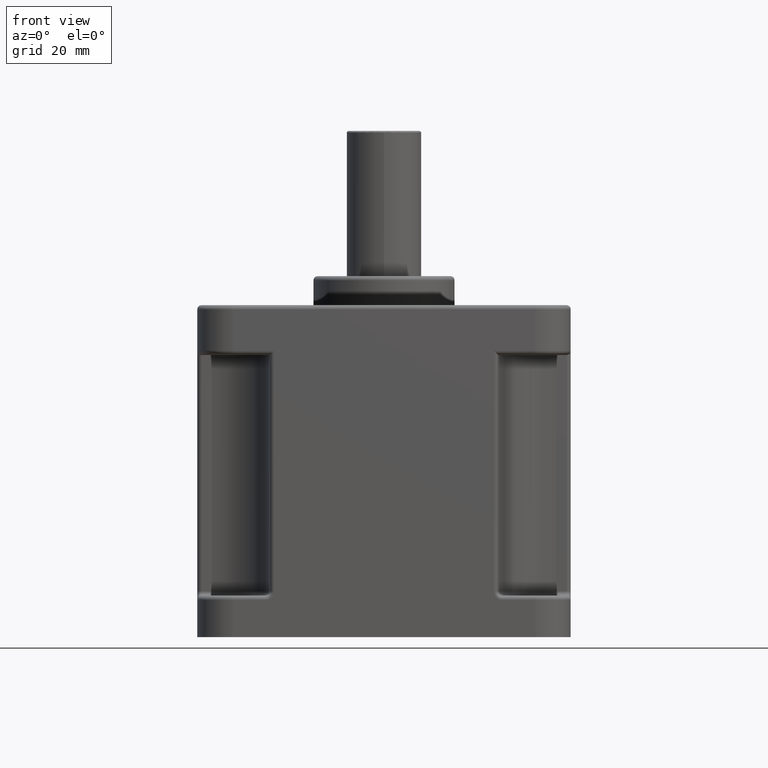
[diagram: clean part render]
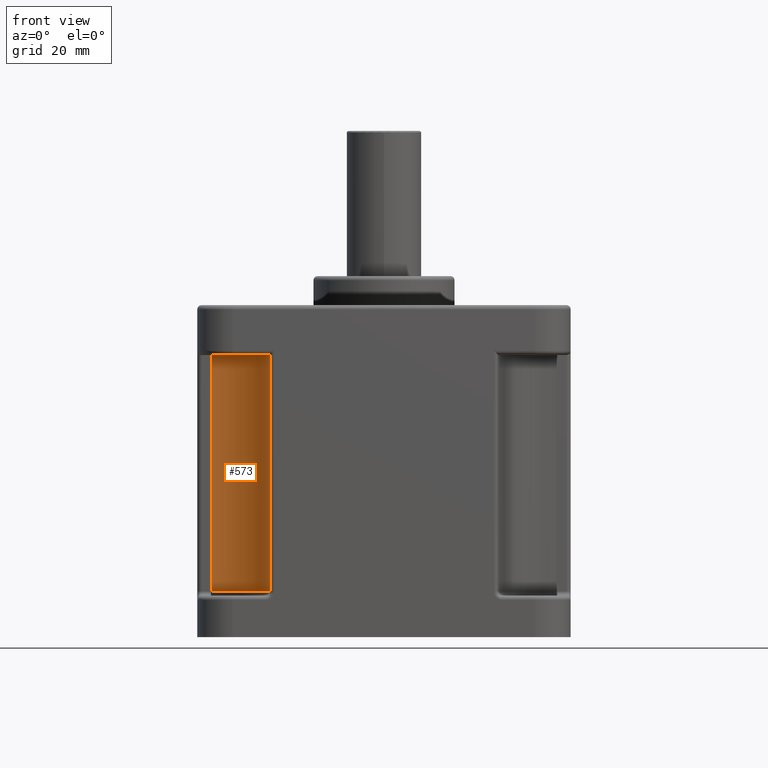
[diagram: same view with one face highlighted and labeled with its STEP entity id]
A machine part, front view. The second image highlights one B-rep face of the part: STEP entity #573.
In plain terms, the highlighted cylindrical surface (partial cylindrical patch) has radius 14 mm, axis along (0, -0, -1).
Its self-contained STEP definition (entity closure, byte-faithful):
#543 = EDGE_CURVE ( 'NONE', #4059, #4207, #5105, .T. ) ;
#558 = EDGE_CURVE ( 'NONE', #4211, #4217, #5133, .T. ) ;
#560 = ORIENTED_EDGE ( 'NONE', *, *, #558, .T. ) ;
#564 = ORIENTED_EDGE ( 'NONE', *, *, #4222, .F. ) ;
#568 = ORIENTED_EDGE ( 'NONE', *, *, #4218, .T. ) ;
#569 = ORIENTED_EDGE ( 'NONE', *, *, #543, .F. ) ;
#573 = ADVANCED_FACE ( 'NONE', ( #5159 ), #5152, .F. ) ;
#574 = EDGE_LOOP ( 'NONE', ( #568, #560, #564, #569 ) ) ;
#1735 = CARTESIAN_POINT ( 'NONE',  ( 41.49999999999998600, -27.50000000000033800, 11.99999999999998900 ) ) ;
#2010 = CARTESIAN_POINT ( 'NONE',  ( 27.49999999999989300, -41.50000000000025600, 68.99999999999997200 ) ) ;
#2014 = CARTESIAN_POINT ( 'NONE',  ( 41.49999999999998600, -27.50000000000033800, 68.99999999999997200 ) ) ;
#2017 = CARTESIAN_POINT ( 'NONE',  ( 27.49999999999989300, -41.50000000000025600, 11.99999999999998900 ) ) ;
#2041 = DIRECTION ( 'NONE',  ( -0.0000000000000000000, -0.0000000000000000000, 1.000000000000000000 ) ) ;
#2042 = VECTOR ( 'NONE', #2041, 1000.000000000000000 ) ;
#2043 = CARTESIAN_POINT ( 'NONE',  ( 27.49999999999989300, -41.50000000000025600, 11.99999999999998900 ) ) ;
#2044 = LINE ( 'NONE', #2043, #2042 ) ;
#2046 = DIRECTION ( 'NONE',  ( -0.0000000000000000000, -0.0000000000000000000, 1.000000000000000000 ) ) ;
#2047 = VECTOR ( 'NONE', #2046, 1000.000000000000000 ) ;
#2048 = CARTESIAN_POINT ( 'NONE',  ( 41.49999999999998600, -27.50000000000033800, 11.99999999999998900 ) ) ;
#2049 = LINE ( 'NONE', #2048, #2047 ) ;
#4059 = VERTEX_POINT ( 'NONE', #1735 ) ;
#4207 = VERTEX_POINT ( 'NONE', #2017 ) ;
#4211 = VERTEX_POINT ( 'NONE', #2014 ) ;
#4217 = VERTEX_POINT ( 'NONE', #2010 ) ;
#4218 = EDGE_CURVE ( 'NONE', #4059, #4211, #2049, .T. ) ;
#4222 = EDGE_CURVE ( 'NONE', #4207, #4217, #2044, .T. ) ;
#5091 = AXIS2_PLACEMENT_3D ( 'NONE', #5144, #5143, #5142 ) ;
#5105 = CIRCLE ( 'NONE', #5091, 13.99999999999999100 ) ;
#5133 = CIRCLE ( 'NONE', #5135, 13.99999999999999100 ) ;
#5135 = AXIS2_PLACEMENT_3D ( 'NONE', #5168, #5167, #5166 ) ;
#5142 = DIRECTION ( 'NONE',  ( 1.000000000000000000, 0.0000000000000000000, 0.0000000000000000000 ) ) ;
#5143 = DIRECTION ( 'NONE',  ( 0.0000000000000000000, 0.0000000000000000000, 1.000000000000000000 ) ) ;
#5144 = CARTESIAN_POINT ( 'NONE',  ( 41.49999999999989300, -41.50000000000031300, 11.99999999999998900 ) ) ;
#5152 = CYLINDRICAL_SURFACE ( 'NONE', #5210, 13.99999999999999100 ) ;
#5159 = FACE_OUTER_BOUND ( 'NONE', #574, .T. ) ;
#5166 = DIRECTION ( 'NONE',  ( 1.000000000000000000, 0.0000000000000000000, 0.0000000000000000000 ) ) ;
#5167 = DIRECTION ( 'NONE',  ( 0.0000000000000000000, 0.0000000000000000000, 1.000000000000000000 ) ) ;
#5168 = CARTESIAN_POINT ( 'NONE',  ( 41.49999999999989300, -41.50000000000031300, 68.99999999999998600 ) ) ;
#5207 = DIRECTION ( 'NONE',  ( 1.000000000000000000, 0.0000000000000000000, 0.0000000000000000000 ) ) ;
#5208 = DIRECTION ( 'NONE',  ( -0.0000000000000000000, -0.0000000000000000000, 1.000000000000000000 ) ) ;
#5209 = CARTESIAN_POINT ( 'NONE',  ( 41.49999999999989300, -41.50000000000031300, 11.99999999999998900 ) ) ;
#5210 = AXIS2_PLACEMENT_3D ( 'NONE', #5209, #5208, #5207 ) ;